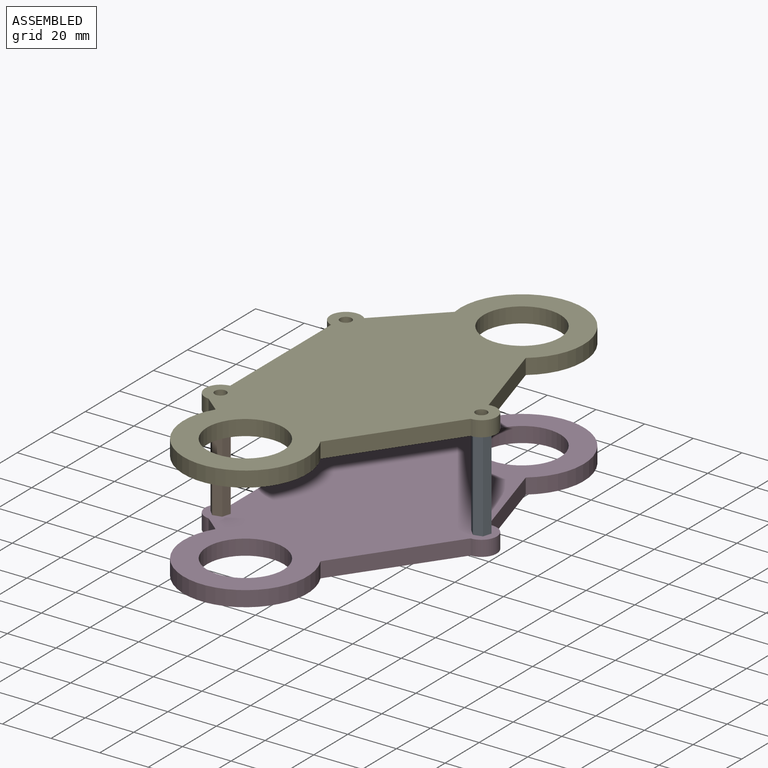
[diagram: assembled view]
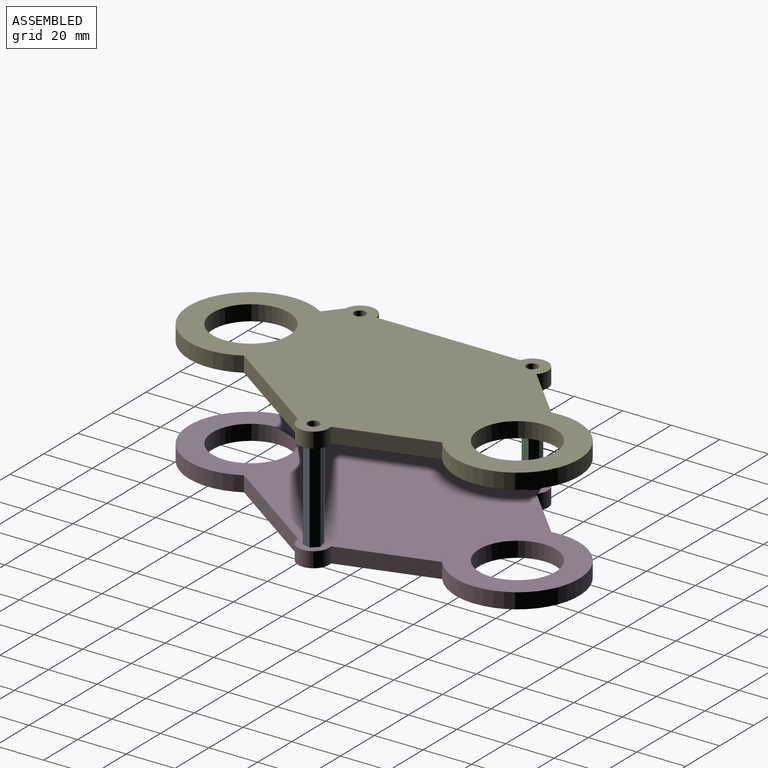
[diagram: assembled view, second angle]
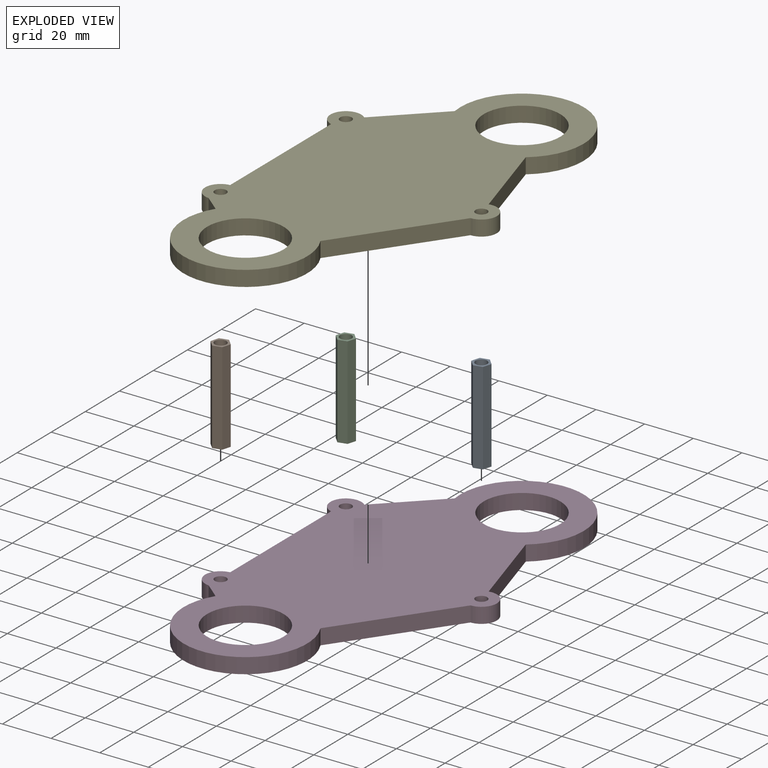
[diagram: exploded view]
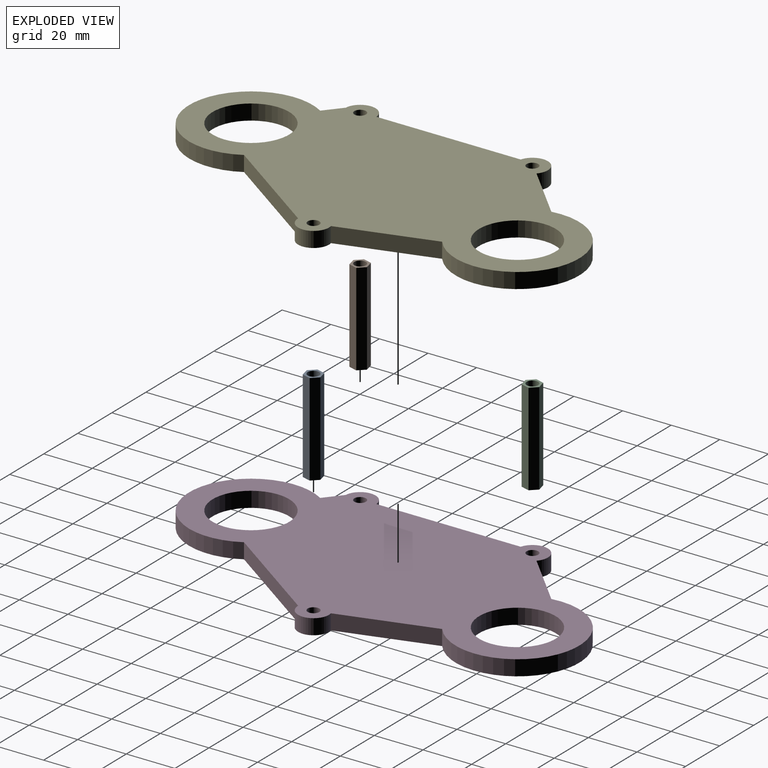
[diagram: exploded view, second angle]
ASSEMBLY  parts=5 mates=8
PART A: 9 faces, bbox 7.1x7x38.1 mm
  f0: plane 38.1x3.56mm, normal (-0.24,0.97,0), area 139.7mm2, adj f1,f5,f6,f7
  f1: plane 38.1x3.52mm, normal (-0.96,0.28,0), area 139.7mm2, adj f0,f2,f6,f7
  f2: plane 38.1x2.64mm, normal (-0.72,-0.69,0), area 139.7mm2, adj f1,f3,f6,f7
  f3: plane 38.1x3.56mm, normal (0.24,-0.97,0), area 139.7mm2, adj f2,f4,f6,f7
  f4: plane 38.1x3.52mm, normal (0.96,-0.28,0), area 139.7mm2, adj f3,f5,f6,f7
  f5: plane 38.1x2.64mm, normal (0.72,0.69,0), area 139.7mm2, adj f0,f4,f6,f7
  f6: plane 7.12x7.04mm, normal (0,0,1), area 17mm2, adj f0,f1,f2,f3,f4,f5,f8
  f7: plane 7.12x7.04mm, normal (0,0,-1), area 17mm2, adj f0,f1,f2,f3,f4,f5,f8
  f8: cylinder r=2.39mm len=38.1mm, axis (0,0,1), area 571.6mm2, adj f6,f7
PART B: same geometry as A
PART C: same geometry as A
PART D: 19 faces, bbox 93.7x177.8x6.4 mm
  f0: extruded ~6.35x0.44mm, area 2.9mm2, adj f1,f15,f17,f18
  f1: cylinder r=25.4mm len=28.45mm, axis (0,0,-1), area 241mm2, adj f0,f2,f17,f18
  f2: plane 22.09x21.57mm, normal (-0.7,0.72,0), area 196mm2, adj f1,f3,f17,f18
  f3: cylinder r=6.35mm len=12.44mm, axis (0,0,-1), area 145.2mm2, adj f2,f4,f17,f18
  f4: plane 59.33x6.35mm, normal (-1,0,0), area 376.7mm2, adj f3,f5,f17,f18
  f5: cylinder r=6.35mm len=12.66mm, axis (0,0,-1), area 120.2mm2, adj f4,f6,f17,f18
  f6: plane 6.85x6.35mm, normal (-0.64,-0.77,0), area 56.4mm2, adj f5,f7,f17,f18
  f7: cylinder r=25.4mm len=50.8mm, axis (0,0,-1), area 679.6mm2, adj f6,f8,f17,f18
  f8: plane 43.94x30.97mm, normal (0.82,-0.58,0), area 341.3mm2, adj f7,f9,f17,f18
  f9: cylinder r=6.35mm len=12.7mm, axis (0,0,-1), area 135.4mm2, adj f8,f10,f17,f18
  f10: plane 37.86x11.25mm, normal (0.96,0.28,0), area 250.8mm2, adj f9,f15,f17,f18
  f11: cylinder r=2.39mm len=6.35mm, axis (0,0,-1), area 95.3mm2, adj f17,f18
  f12: cylinder r=2.39mm len=6.35mm, axis (0,0,-1), area 95.3mm2, adj f17,f18
  f13: cylinder r=15.75mm len=31.5mm, axis (0,0,-1), area 628.3mm2, adj f17,f18
  f14: cylinder r=2.39mm len=6.35mm, axis (0,0,-1), area 95.3mm2, adj f17,f18
  f15: cylinder r=25.4mm len=45.47mm, axis (0,0,-1), area 433mm2, adj f0,f10,f17,f18
  f16: cylinder r=15.75mm len=31.5mm, axis (0,0,-1), area 628.3mm2, adj f17,f18
  f17: plane 177.8x93.67mm, normal (0,0,1), area 8962.5mm2, adj f0,f1,f2,f3,f4,f5,f6,f7
  f18: plane 177.8x93.67mm, normal (0,0,-1), area 8962.5mm2, adj f0,f1,f2,f3,f4,f5,f6,f7
PART E: same geometry as D
PLACE A t=(26.59,-22.39,-18.42)mm
PLACE B t=(-54.38,-59.92,-18.42)mm
PLACE C rot(axis=(0,0,1),180deg) t=(-53.1,11.83,-18.42)mm
PLACE D t=(-26.44,-37.57,-24.77)mm
PLACE E t=(-26.44,-37.57,19.68)mm
MATE slider E.f9 <-> A.f8  axis (0,0,1) through (26.59,-22.39,26.03)mm
MATE slider B.f8 <-> D.f5  axis (0,0,1) through (-54.38,-59.92,19.68)mm
MATE slider C.f8 <-> D.f3  axis (0,0,1) through (-53.1,11.83,19.68)mm
MATE planar E.f18 <-> A.f8  axis (0,0,-1) through (-17.27,-20.64,19.68)mm
MATE planar C.f7 <-> D.f17  axis (0,0,-1) through (-52.34,8.75,-18.42)mm
MATE planar A.f8 <-> D.f17  axis (0,0,-1) through (26.59,-22.39,-18.42)mm
MATE slider A.f8 <-> D.f9  axis (0,0,1) through (26.59,-22.39,19.68)mm
MATE planar B.f8 <-> D.f17  axis (0,0,-1) through (-54.38,-59.92,-18.42)mm
